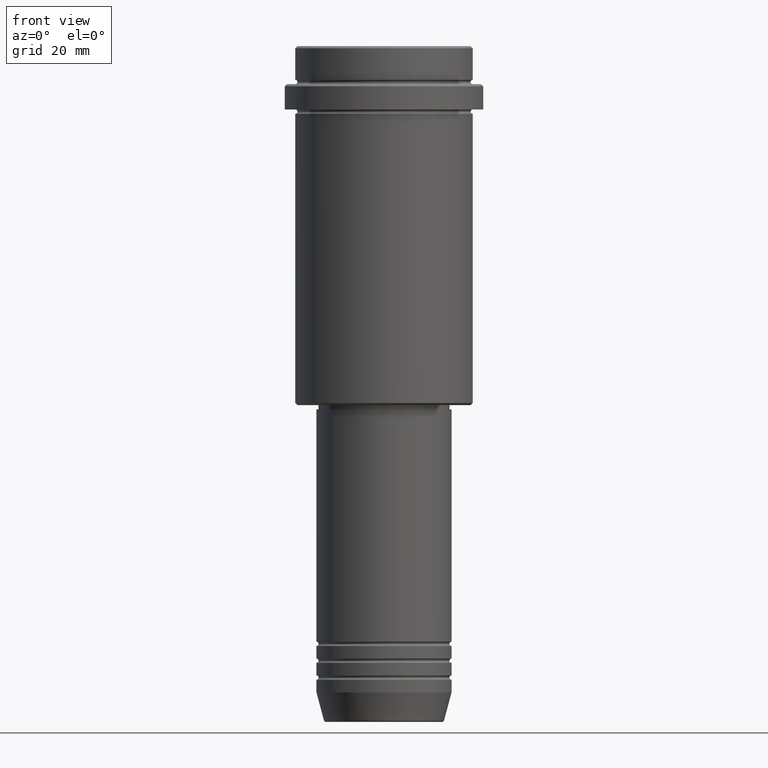
[diagram: clean part render]
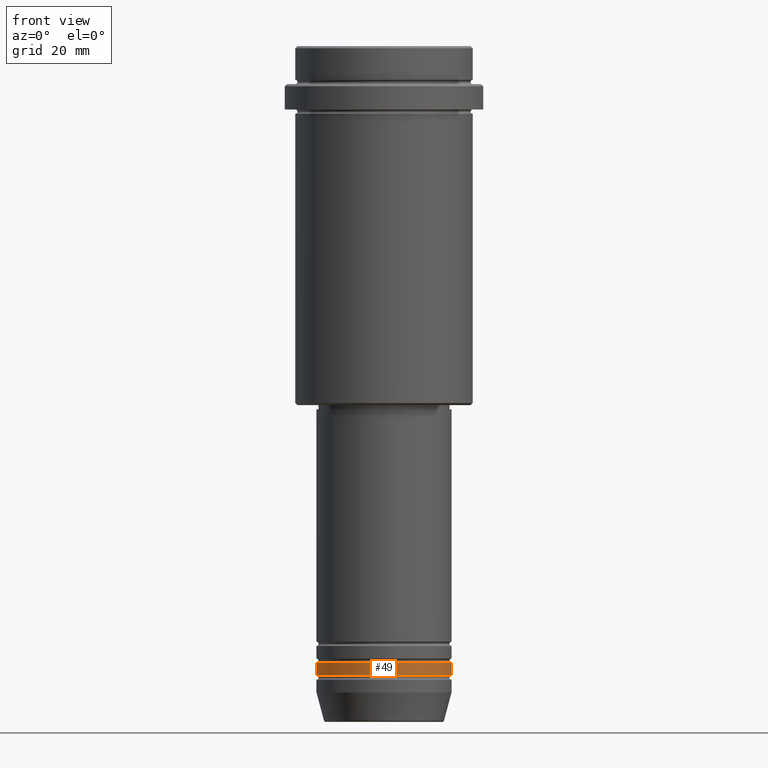
[diagram: same view with one face highlighted and labeled with its STEP entity id]
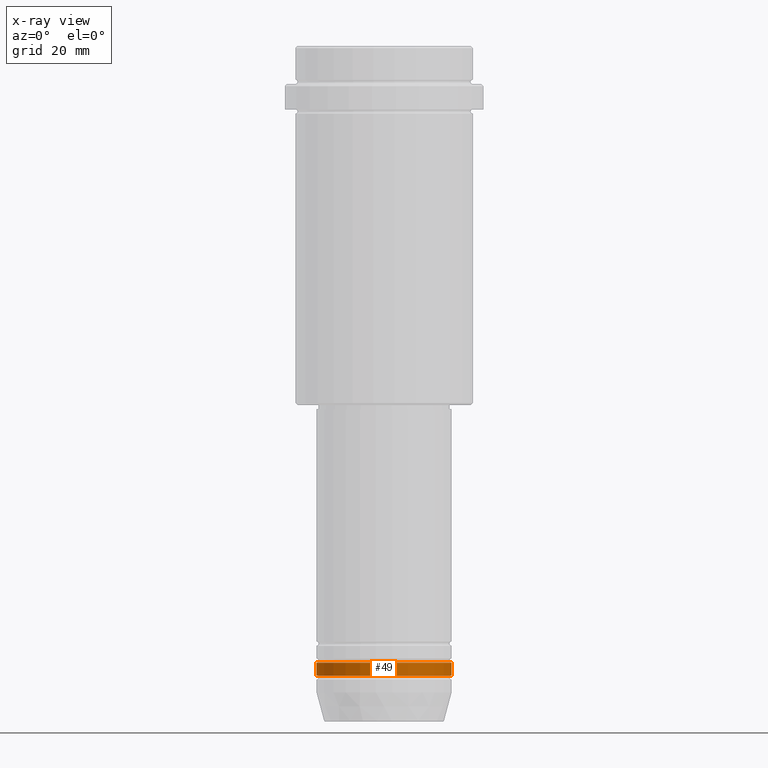
[diagram: x-ray of the same camera — body ghosted, the highlighted face saturated]
A machine part, front view. The second image highlights one B-rep face of the part: STEP entity #49.
The next image is the same camera in x-ray: the body ghosted, the highlighted face saturated — about 0% of this face is hidden behind the body in this view.
In plain terms, the highlighted cylindrical surface (partial cylindrical patch) has radius 16 mm, axis along (-0, -0, 1).
Its self-contained STEP definition (entity closure, byte-faithful):
#30 = VERTEX_POINT ( 'NONE', #1080 ) ;
#49 = ADVANCED_FACE ( 'NONE', ( #303 ), #528, .T. ) ;
#107 = ORIENTED_EDGE ( 'NONE', *, *, #899, .F. ) ;
#185 = DIRECTION ( 'NONE',  ( -0.000000000000000000, -0.000000000000000000, 1.000000000000000000 ) ) ;
#210 = DIRECTION ( 'NONE',  ( 1.000000000000000000, 0.000000000000000000, 0.000000000000000000 ) ) ;
#266 = ORIENTED_EDGE ( 'NONE', *, *, #370, .T. ) ;
#303 = FACE_OUTER_BOUND ( 'NONE', #586, .T. ) ;
#330 = CIRCLE ( 'NONE', #759, 16.00000000000000000 ) ;
#354 = CIRCLE ( 'NONE', #392, 16.00000000000000000 ) ;
#370 = EDGE_CURVE ( 'NONE', #959, #30, #1237, .T. ) ;
#392 = AXIS2_PLACEMENT_3D ( 'NONE', #1325, #448, #549 ) ;
#448 = DIRECTION ( 'NONE',  ( -0.000000000000000000, -0.000000000000000000, 1.000000000000000000 ) ) ;
#460 = VECTOR ( 'NONE', #1141, 1000.000000000000000 ) ;
#517 = LINE ( 'NONE', #739, #646 ) ;
#528 = CYLINDRICAL_SURFACE ( 'NONE', #991, 16.00000000000000000 ) ;
#549 = DIRECTION ( 'NONE',  ( 1.000000000000000000, 0.000000000000000000, 0.000000000000000000 ) ) ;
#562 = EDGE_CURVE ( 'NONE', #1318, #30, #354, .T. ) ;
#565 = CARTESIAN_POINT ( 'NONE',  ( 0.000000000000000000, 0.000000000000000000, -148.9999999999999147 ) ) ;
#586 = EDGE_LOOP ( 'NONE', ( #107, #944, #266, #1049 ) ) ;
#591 = EDGE_CURVE ( 'NONE', #1004, #959, #330, .T. ) ;
#626 = DIRECTION ( 'NONE',  ( -0.000000000000000000, -0.000000000000000000, 1.000000000000000000 ) ) ;
#630 = CARTESIAN_POINT ( 'NONE',  ( 16.00000000000000000, 0.000000000000000000, -148.9999999999999147 ) ) ;
#646 = VECTOR ( 'NONE', #185, 1000.000000000000000 ) ;
#700 = CARTESIAN_POINT ( 'NONE',  ( 16.00000000000000000, 0.000000000000000000, 0.000000000000000000 ) ) ;
#726 = CARTESIAN_POINT ( 'NONE',  ( -16.00000000000000000, 1.959434878635765131E-15, -145.9999999999999147 ) ) ;
#739 = CARTESIAN_POINT ( 'NONE',  ( -16.00000000000000000, 1.959434878635765131E-15, 0.000000000000000000 ) ) ;
#756 = CARTESIAN_POINT ( 'NONE',  ( 0.000000000000000000, 0.000000000000000000, 0.000000000000000000 ) ) ;
#759 = AXIS2_PLACEMENT_3D ( 'NONE', #565, #1000, #873 ) ;
#873 = DIRECTION ( 'NONE',  ( 1.000000000000000000, 0.000000000000000000, 0.000000000000000000 ) ) ;
#890 = CARTESIAN_POINT ( 'NONE',  ( -16.00000000000000000, 1.959434878635765131E-15, -148.9999999999999147 ) ) ;
#899 = EDGE_CURVE ( 'NONE', #1004, #1318, #517, .T. ) ;
#944 = ORIENTED_EDGE ( 'NONE', *, *, #591, .T. ) ;
#959 = VERTEX_POINT ( 'NONE', #630 ) ;
#991 = AXIS2_PLACEMENT_3D ( 'NONE', #756, #626, #210 ) ;
#1000 = DIRECTION ( 'NONE',  ( -0.000000000000000000, -0.000000000000000000, 1.000000000000000000 ) ) ;
#1004 = VERTEX_POINT ( 'NONE', #890 ) ;
#1049 = ORIENTED_EDGE ( 'NONE', *, *, #562, .F. ) ;
#1080 = CARTESIAN_POINT ( 'NONE',  ( 16.00000000000000000, 0.000000000000000000, -145.9999999999999147 ) ) ;
#1141 = DIRECTION ( 'NONE',  ( -0.000000000000000000, -0.000000000000000000, 1.000000000000000000 ) ) ;
#1237 = LINE ( 'NONE', #700, #460 ) ;
#1318 = VERTEX_POINT ( 'NONE', #726 ) ;
#1325 = CARTESIAN_POINT ( 'NONE',  ( 0.000000000000000000, 0.000000000000000000, -145.9999999999999147 ) ) ;